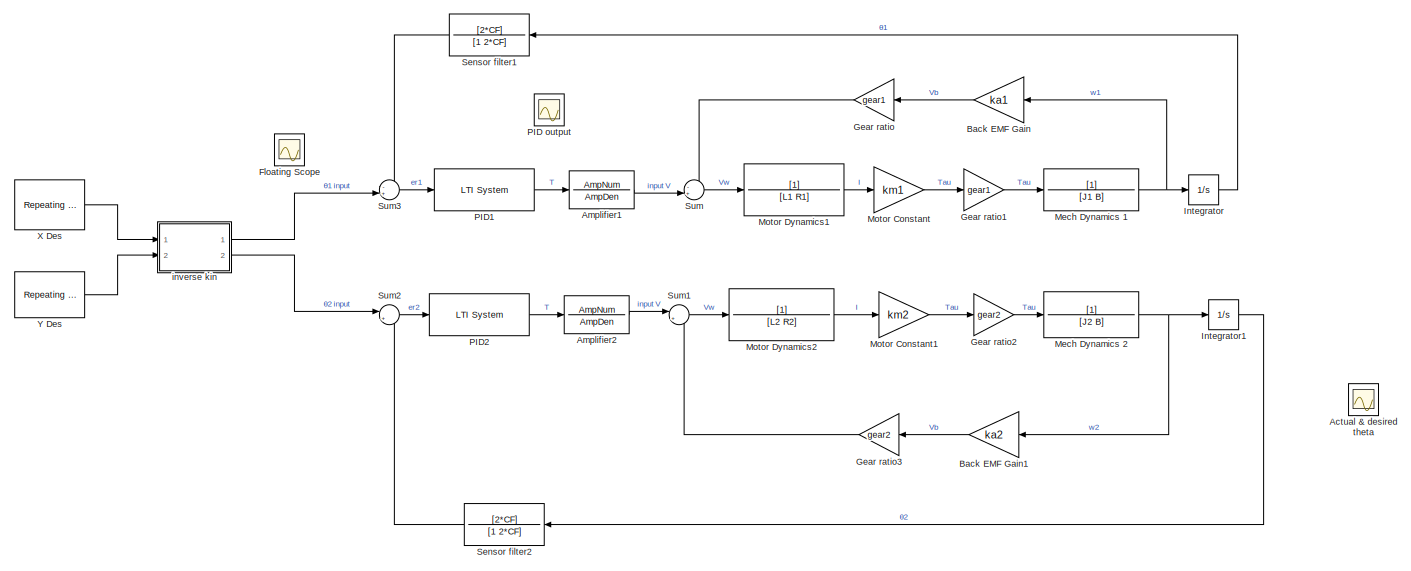
[diagram: root canvas - part 1/2, full width, middle band]
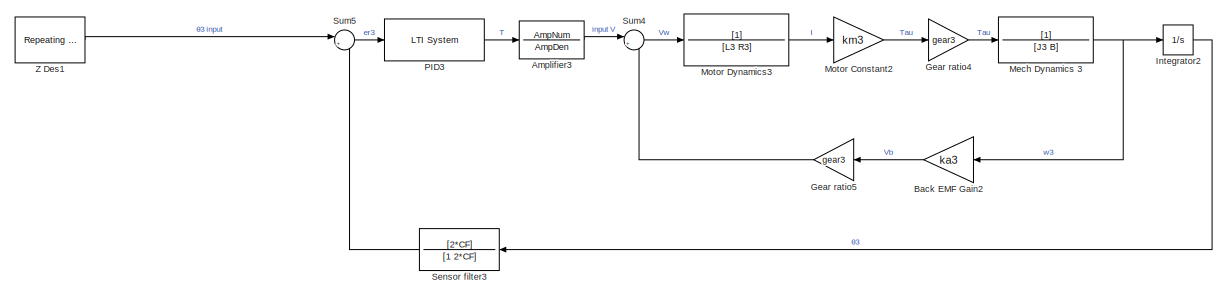
[diagram: root canvas - part 2/2, full width, bottom band]
MODEL slx_302c4db08f83
KIND model
CONFIG AbsTol = auto
CONFIG EnableMultiTasking = off
CONFIG FixedStep = auto
CONFIG MaxStep = auto
CONFIG MinStep = auto
CONFIG RelTol = 1e-3
CONFIG SampleTimeConstraint = Unconstrained
CONFIG SolverName = VariableStepAuto
CONFIG StartTime = 0.0
CONFIG StopTime = 10.0
BLOCK [Scope] Actual & desired theta
  Floating = on
  NumInputPorts = 1
  Ports = []
  ScopeSpecificationString = Simulink.scopes.TimeScopeBlockCfg('CurrentConfiguration', extmgr.ConfigurationSet(extmgr.Configuration('Core','General UI',true),extmgr.Configuration('Core','Source UI',true),extmgr.Configuration('Sources','WiredSimulink',true,'DataLoggingVariableName','ScopeData1'),extmgr.Configuration('Visuals','Time Domain',true,'SerializedDisplays',{struct('MinYLimReal','-2.34601','MaxYLimReal','3.1939','YLabe...<+1464ch>
BLOCK [TransferFcn] Amplifier1
  Denominator = AmpDen
  Numerator = AmpNum
BLOCK [TransferFcn] Amplifier2
  Denominator = AmpDen
  Numerator = AmpNum
BLOCK [TransferFcn] Amplifier3
  Denominator = AmpDen
  Numerator = AmpNum
BLOCK [Gain] Back EMF Gain
  Gain = ka1
BLOCK [Gain] Back EMF Gain1
  Gain = ka2
BLOCK [Gain] Back EMF Gain2
  Gain = ka3
BLOCK [Scope] Floating Scope
  Floating = on
  NumInputPorts = 1
  Ports = []
  ScopeSpecificationString = Simulink.scopes.TimeScopeBlockCfg('CurrentConfiguration', extmgr.ConfigurationSet(extmgr.Configuration('Core','General UI',true),extmgr.Configuration('Core','Source UI',true),extmgr.Configuration('Sources','WiredSimulink',true,'DataLoggingVariableName','ScopeData2'),extmgr.Configuration('Visuals','Time Domain',true,'SerializedDisplays',{struct('MinYLimReal','-0.52398','MaxYLimReal','0.6061','YLabe...<+1443ch>
BLOCK [Gain] Gear ratio
  Gain = gear1
BLOCK [Gain] Gear ratio1
  Gain = gear1
BLOCK [Gain] Gear ratio2
  Gain = gear2
BLOCK [Gain] Gear ratio3
  Gain = gear2
BLOCK [Gain] Gear ratio4
  Gain = gear3
BLOCK [Gain] Gear ratio5
  Gain = gear3
BLOCK [Integrator] Integrator
  Ports = [1, 1]
BLOCK [Integrator] Integrator1
  Ports = [1, 1]
BLOCK [Integrator] Integrator2
  Ports = [1, 1]
BLOCK [TransferFcn] Mech Dynamics 1
  Denominator = [J1 B]
BLOCK [TransferFcn] Mech Dynamics 2
  Denominator = [J2 B]
BLOCK [TransferFcn] Mech Dynamics 3
  Denominator = [J3 B]
BLOCK [Gain] Motor Constant
  Gain = km1
BLOCK [Gain] Motor Constant1
  Gain = km2
BLOCK [Gain] Motor Constant2
  Gain = km3
BLOCK [TransferFcn] Motor Dynamics1
  Denominator = [L1 R1]
BLOCK [TransferFcn] Motor Dynamics2
  Denominator = [L2 R2]
BLOCK [TransferFcn] Motor Dynamics3
  Denominator = [L3 R3]
BLOCK [Scope] PID output
  Floating = on
  NumInputPorts = 1
  Ports = []
  ScopeSpecificationString = Simulink.scopes.TimeScopeBlockCfg('CurrentConfiguration', extmgr.ConfigurationSet(extmgr.Configuration('Core','General UI',true),extmgr.Configuration('Core','Source UI',true),extmgr.Configuration('Sources','WiredSimulink',true),extmgr.Configuration('Visuals','Time Domain',true,'SerializedDisplays',{struct('MinYLimReal','-16.81316','MaxYLimReal','27.54976','YLabelReal','','MinYLimMag','0.00000','Ma...<+1358ch>
BLOCK [Reference] PID1  REF=cstblocks/LTI System
  Ports = [1, 1]
  SourceBlock = cstblocks/LTI System
  SourceProductBaseCode = CT
  SourceType = LTI Block
BLOCK [Reference] PID2  REF=cstblocks/LTI System
  Ports = [1, 1]
  SourceBlock = cstblocks/LTI System
  SourceProductBaseCode = CT
  SourceType = LTI Block
BLOCK [Reference] PID3  REF=cstblocks/LTI System
  Ports = [1, 1]
  SourceBlock = cstblocks/LTI System
  SourceProductBaseCode = CT
  SourceType = LTI Block
BLOCK [TransferFcn] Sensor filter1
  Denominator = [1 2*CF]
  Numerator = [2*CF]
BLOCK [TransferFcn] Sensor filter2
  Denominator = [1 2*CF]
  Numerator = [2*CF]
BLOCK [TransferFcn] Sensor filter3
  Denominator = [1 2*CF]
  Numerator = [2*CF]
BLOCK [Sum] Sum
  Inputs = -+|
  NameLocation = top
  Ports = [2, 1]
BLOCK [Sum] Sum1
  Inputs = |+-
  Ports = [2, 1]
BLOCK [Sum] Sum2
  Inputs = |+-
  Ports = [2, 1]
BLOCK [Sum] Sum3
  Inputs = -+|
  Ports = [2, 1]
BLOCK [Sum] Sum4
  Inputs = |+-
  Ports = [2, 1]
BLOCK [Sum] Sum5
  Inputs = |+-
  Ports = [2, 1]
BLOCK [Reference] X Des  REF=simulink/Sources/Repeating
Sequence
Interpolated
  Ports = [0, 1]
  SourceBlock = simulink/Sources/Repeating\nSequence\nInterpolated
  SourceProductBaseCode = SL
  SourceType = Repeating Sequence Interpolated
BLOCK [Reference] Y Des  REF=simulink/Sources/Repeating
Sequence
Interpolated
  Ports = [0, 1]
  SourceBlock = simulink/Sources/Repeating\nSequence\nInterpolated
  SourceProductBaseCode = SL
  SourceType = Repeating Sequence Interpolated
BLOCK [Reference] Z Des1  REF=simulink/Sources/Repeating
Sequence
Interpolated
  Ports = [0, 1]
  SourceBlock = simulink/Sources/Repeating\nSequence\nInterpolated
  SourceProductBaseCode = SL
  SourceType = Repeating Sequence Interpolated
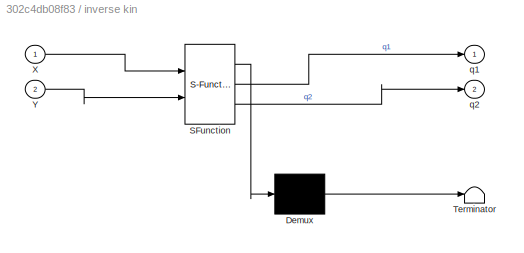
BLOCK [SubSystem] inverse kin
  ErrorFcn = Stateflow.Translate.translate
  PermitHierarchicalResolution = ExplicitOnly
  Ports = [2, 2]
  RequestExecContextInheritance = off
  SFBlockType = MATLAB Function
  TreatAsAtomicUnit = on
BLOCK [Demux] inverse kin/ Demux 
  Outputs = 1
  Ports = [1, 1]
BLOCK [S-Function] inverse kin/ SFunction 
  EnableBusSupport = on
  FunctionName = sf_sfun
  PortCounts = [2 3]
  Ports = [2, 3]
  SFcnIsStateOwnerBlock = off
  SFunctionDeploymentMode = off
  Tag = Stateflow S-Function 2
BLOCK [Terminator] inverse kin/ Terminator 
BLOCK [Inport] inverse kin/X
BLOCK [Inport] inverse kin/Y
  Port = 2
BLOCK [Outport] inverse kin/q1
BLOCK [Outport] inverse kin/q2
  Port = 2
LINE Amplifier1:1 -> Sum:2
LINE Amplifier2:1 -> Sum1:1
LINE Amplifier3:1 -> Sum4:1
LINE Back EMF Gain1:1 -> Gear ratio3:1
LINE Back EMF Gain2:1 -> Gear ratio5:1
LINE Back EMF Gain:1 -> Gear ratio:1
LINE Gear ratio1:1 -> Mech Dynamics 1:1
LINE Gear ratio2:1 -> Mech Dynamics 2:1
LINE Gear ratio3:1 -> Sum1:2
LINE Gear ratio4:1 -> Mech Dynamics 3:1
LINE Gear ratio5:1 -> Sum4:2
LINE Gear ratio:1 -> Sum:1
LINE Integrator1:1 -> Sensor filter2:1
LINE Integrator2:1 -> Sensor filter3:1
LINE Integrator:1 -> Sensor filter1:1
NET Mech Dynamics 1:1 -> Back EMF Gain:1, Integrator:1
NET Mech Dynamics 2:1 -> Back EMF Gain1:1, Integrator1:1
NET Mech Dynamics 3:1 -> Back EMF Gain2:1, Integrator2:1
LINE Motor Constant1:1 -> Gear ratio2:1
LINE Motor Constant2:1 -> Gear ratio4:1
LINE Motor Constant:1 -> Gear ratio1:1
LINE Motor Dynamics1:1 -> Motor Constant:1
LINE Motor Dynamics2:1 -> Motor Constant1:1
LINE Motor Dynamics3:1 -> Motor Constant2:1
LINE PID1:1 -> Amplifier1:1
LINE PID2:1 -> Amplifier2:1
LINE PID3:1 -> Amplifier3:1
LINE Sensor filter1:1 -> Sum3:1
LINE Sensor filter2:1 -> Sum2:2
LINE Sensor filter3:1 -> Sum5:2
LINE Sum1:1 -> Motor Dynamics2:1
LINE Sum2:1 -> PID2:1
LINE Sum3:1 -> PID1:1
LINE Sum4:1 -> Motor Dynamics3:1
LINE Sum5:1 -> PID3:1
LINE Sum:1 -> Motor Dynamics1:1
LINE X Des:1 -> inverse kin:1
LINE Y Des:1 -> inverse kin:2
LINE Z Des1:1 -> Sum5:1
LINE inverse kin:1 -> Sum3:2
LINE inverse kin:2 -> Sum2:1
note: NET lines group one-source signal fan-out (src -> all destinations, sorted); 1:1 wires keep LINE
CHART inverse kin states=1 transitions=1
  STATE_LABEL 'eML_blk_kernel()'
  STATE_LABEL 'SCRIPT:\nfunction [q1,q2] = xy2theta(X,Y)\n\n% Inputs X,Y should be in mm\n% Outputs q1, q2 are in rads\n\nL1 = 275;   % Arm 1 length (mm)\nL2 = 275;   % Arm 2 length (mm)\n\n% Elbow down position\nq1 = 2*atan((2*L1*Y - (- L1^4 + 2*L1^2*L2^2 + 2*L1^2*X^2 + 2*L1^2*Y^2 - L2^4 + 2*L2^2*X^2 + 2*L2^2*Y^2 - X^4 - 2*X^2*Y^2 - Y^4)^(1/2))/(L1^2 + 2*L1*X - L2^2 + X^2 + Y^2));\nq2 =  2*atan(((- L1^2 + 2*L1*L2 - L2^2 +...<+101ch>'
CHART  states=0 transitions=0
